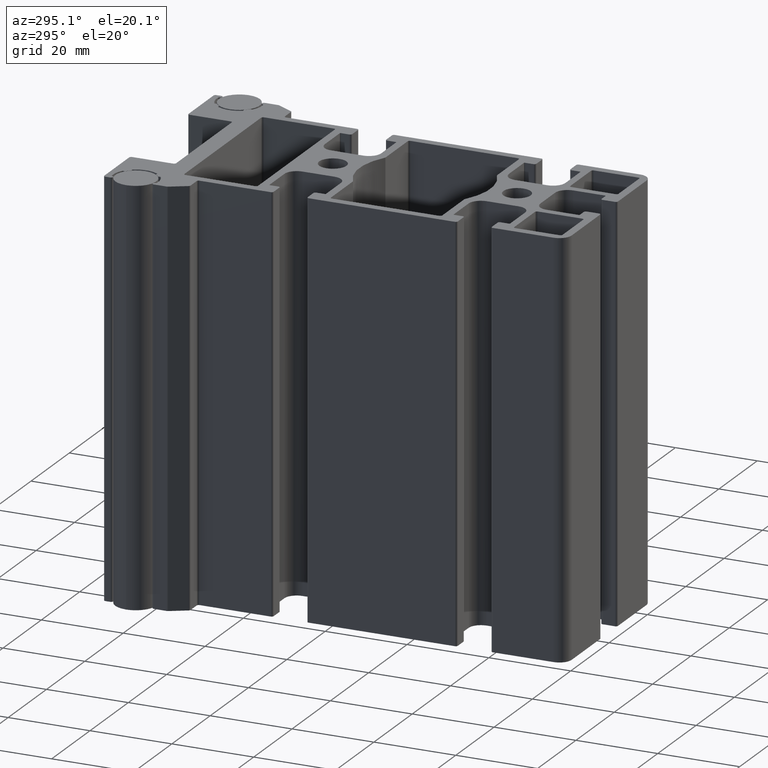
[diagram: clean part render]
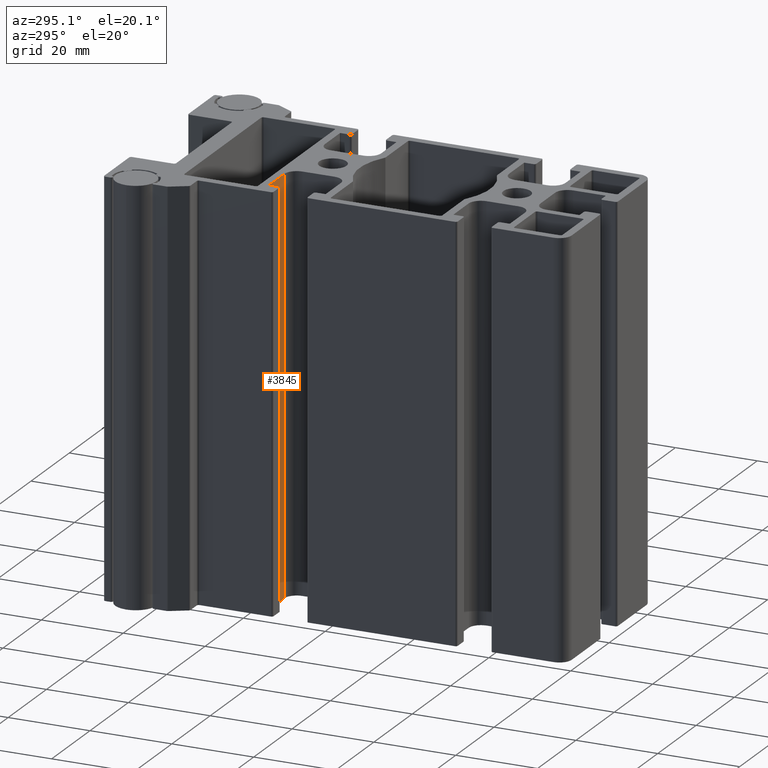
[diagram: same view with one face highlighted and labeled with its STEP entity id]
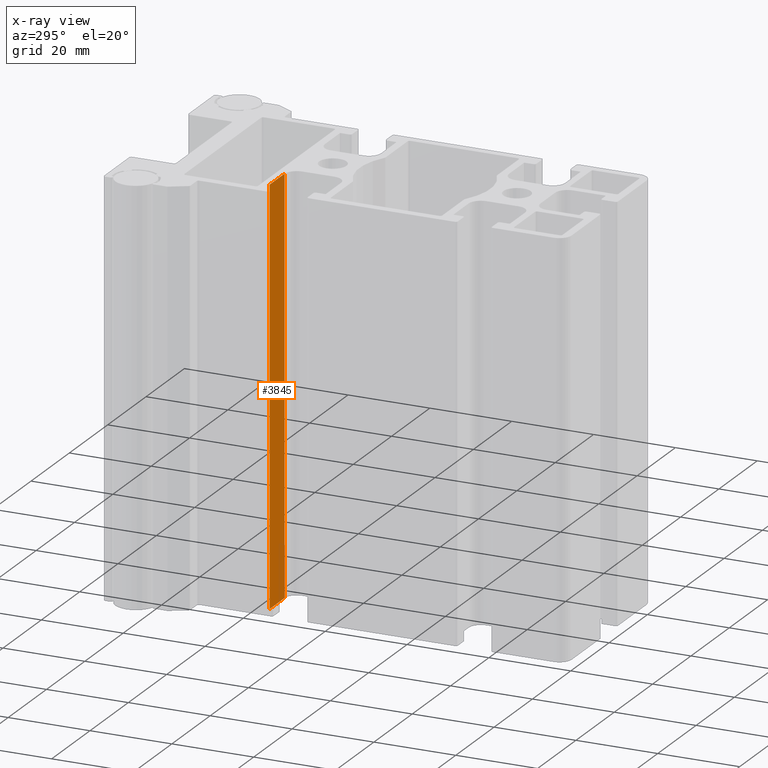
[diagram: x-ray of the same camera — body ghosted, the highlighted face saturated]
A machine part, auxiliary view. The second image highlights one B-rep face of the part: STEP entity #3845.
The next image is the same camera in x-ray: the body ghosted, the highlighted face saturated — about 0% of this face is hidden behind the body in this view.
In plain terms, the highlighted planar face has unit normal (-0, -1, 0).
Its self-contained STEP definition (entity closure, byte-faithful):
#100=PLANE('',#4293);
#241=FACE_OUTER_BOUND('',#446,.T.);
#446=EDGE_LOOP('',(#3104,#3105,#3106,#3107));
#890=LINE('',#6085,#1233);
#1022=LINE('',#6540,#1365);
#1023=LINE('',#6543,#1366);
#1024=LINE('',#6544,#1367);
#1233=VECTOR('',#4816,10.);
#1365=VECTOR('',#5294,10.);
#1366=VECTOR('',#5297,10.);
#1367=VECTOR('',#5298,10.);
#1621=VERTEX_POINT('',#6082);
#1622=VERTEX_POINT('',#6084);
#1772=VERTEX_POINT('',#6538);
#1773=VERTEX_POINT('',#6542);
#2053=EDGE_CURVE('',#1621,#1622,#890,.T.);
#2281=EDGE_CURVE('',#1772,#1621,#1022,.T.);
#2282=EDGE_CURVE('',#1773,#1772,#1023,.T.);
#2283=EDGE_CURVE('',#1773,#1622,#1024,.T.);
#3104=ORIENTED_EDGE('',*,*,#2281,.F.);
#3105=ORIENTED_EDGE('',*,*,#2282,.F.);
#3106=ORIENTED_EDGE('',*,*,#2283,.T.);
#3107=ORIENTED_EDGE('',*,*,#2053,.F.);
#3845=ADVANCED_FACE('',(#241),#100,.T.);
#4293=AXIS2_PLACEMENT_3D('',#6541,#5295,#5296);
#4816=DIRECTION('',(-1.,1.14603667057984E-15,0.));
#5294=DIRECTION('',(0.,0.,-1.));
#5295=DIRECTION('center_axis',(-1.14603667057984E-15,-1.,0.));
#5296=DIRECTION('ref_axis',(1.,-1.14603667057984E-15,0.));
#5297=DIRECTION('',(1.,-1.14603667057984E-15,0.));
#5298=DIRECTION('',(0.,0.,-1.));
#6082=CARTESIAN_POINT('',(-10.5000003912798,74.4000004538773,-50.));
#6084=CARTESIAN_POINT('',(-18.2500003912863,74.4000004538773,-50.));
#6085=CARTESIAN_POINT('',(-10.5000003912798,74.4000004538773,-50.));
#6538=CARTESIAN_POINT('',(-10.5000003912798,74.4000004538773,50.));
#6540=CARTESIAN_POINT('',(-10.5000003912798,74.4000004538773,0.));
#6541=CARTESIAN_POINT('Origin',(-18.2500003912863,74.4000004538773,0.));
#6542=CARTESIAN_POINT('',(-18.2500003912863,74.4000004538773,50.));
#6543=CARTESIAN_POINT('',(-10.5000003912798,74.4000004538773,50.));
#6544=CARTESIAN_POINT('',(-18.2500003912863,74.4000004538773,0.));